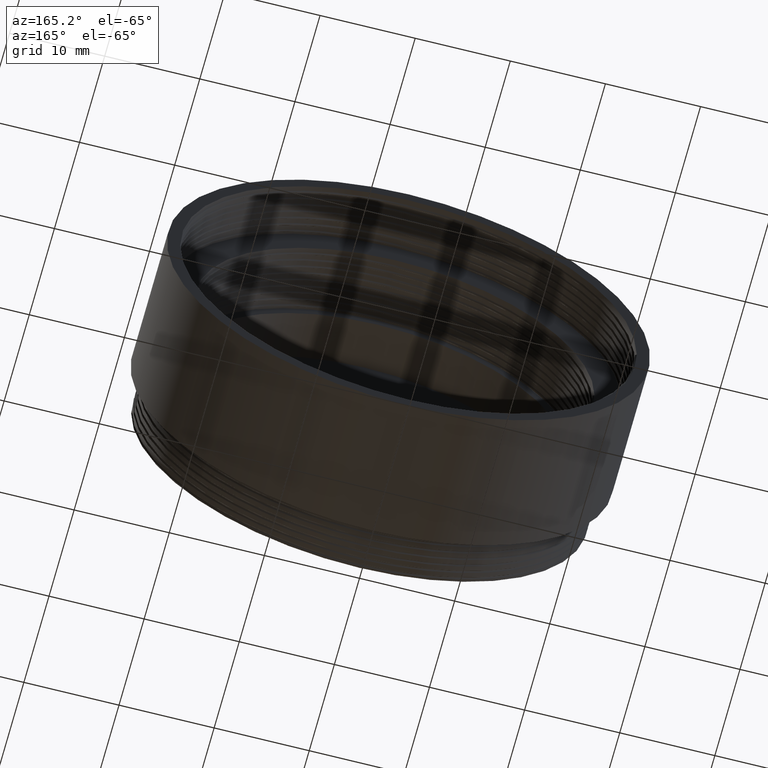
[diagram: clean part render]
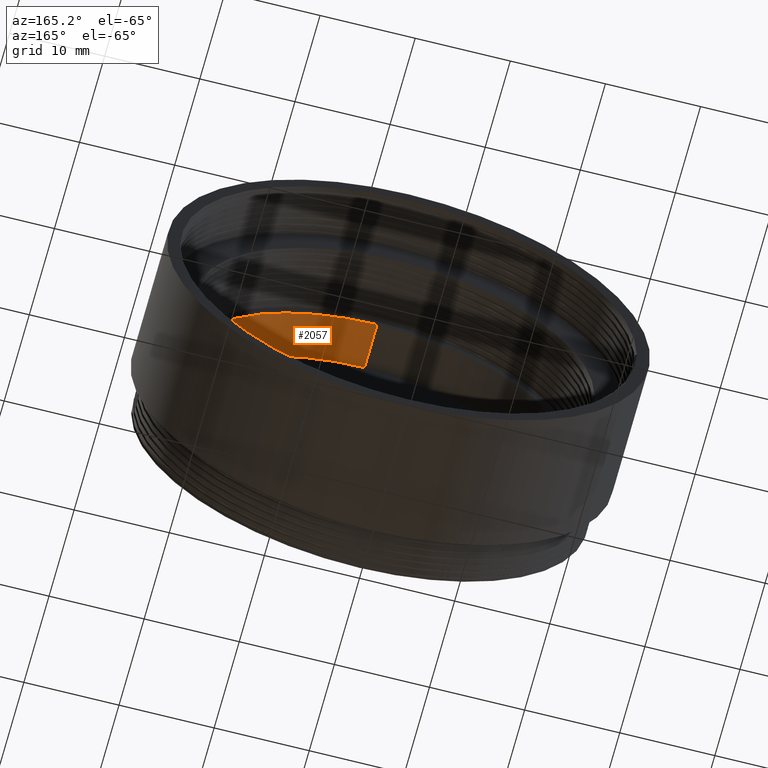
[diagram: same view with one face highlighted and labeled with its STEP entity id]
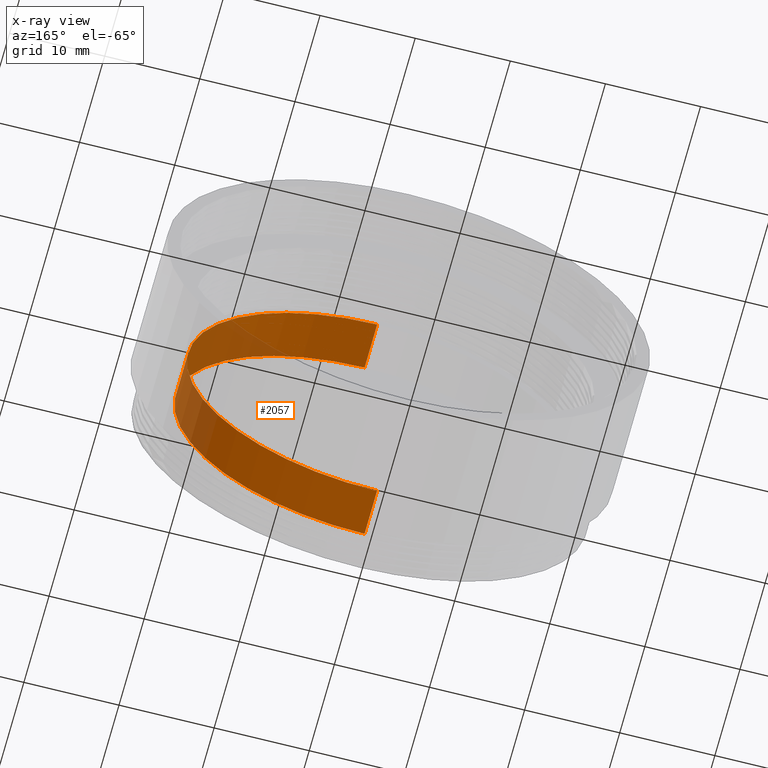
[diagram: x-ray of the same camera — body ghosted, the highlighted face saturated]
A machine part, auxiliary view. The second image highlights one B-rep face of the part: STEP entity #2057.
The next image is the same camera in x-ray: the body ghosted, the highlighted face saturated — about 25% of this face is hidden behind the body in this view.
In plain terms, the highlighted cylindrical surface (partial cylindrical patch) has radius 20 mm, axis along (-0, -1, -0).
Its self-contained STEP definition (entity closure, byte-faithful):
#125 = CARTESIAN_POINT ( 'NONE',  ( 2.449293598294706513E-15, 2.010000000000000231, 20.00000000000000000 ) ) ;
#420 = DIRECTION ( 'NONE',  ( -0.000000000000000000, -1.000000000000000000, -0.000000000000000000 ) ) ;
#595 = AXIS2_PLACEMENT_3D ( 'NONE', #5359, #420, #2360 ) ;
#623 = CARTESIAN_POINT ( 'NONE',  ( 0.000000000000000000, 2.010000000000000231, 0.000000000000000000 ) ) ;
#790 = DIRECTION ( 'NONE',  ( -0.000000000000000000, -1.000000000000000000, -0.000000000000000000 ) ) ;
#800 = ORIENTED_EDGE ( 'NONE', *, *, #968, .F. ) ;
#902 = VERTEX_POINT ( 'NONE', #1690 ) ;
#968 = EDGE_CURVE ( 'NONE', #2708, #3876, #3323, .T. ) ;
#978 = EDGE_CURVE ( 'NONE', #1275, #2708, #2742, .T. ) ;
#989 = CIRCLE ( 'NONE', #4247, 20.00000000000000000 ) ;
#1173 = DIRECTION ( 'NONE',  ( -0.000000000000000000, -1.000000000000000000, -0.000000000000000000 ) ) ;
#1275 = VERTEX_POINT ( 'NONE', #3521 ) ;
#1619 = FACE_OUTER_BOUND ( 'NONE', #6108, .T. ) ;
#1690 = CARTESIAN_POINT ( 'NONE',  ( 0.000000000000000000, 2.010000000000000231, -20.00000000000000000 ) ) ;
#1881 = ORIENTED_EDGE ( 'NONE', *, *, #2156, .T. ) ;
#2057 = ADVANCED_FACE ( 'NONE', ( #1619 ), #2698, .F. ) ;
#2156 = EDGE_CURVE ( 'NONE', #1275, #902, #6036, .T. ) ;
#2360 = DIRECTION ( 'NONE',  ( 0.000000000000000000, 0.000000000000000000, -1.000000000000000000 ) ) ;
#2698 = CYLINDRICAL_SURFACE ( 'NONE', #4668, 20.00000000000000000 ) ;
#2708 = VERTEX_POINT ( 'NONE', #3015 ) ;
#2714 = EDGE_CURVE ( 'NONE', #3876, #902, #989, .T. ) ;
#2742 = CIRCLE ( 'NONE', #595, 20.00000000000000000 ) ;
#2985 = DIRECTION ( 'NONE',  ( 0.000000000000000000, 0.000000000000000000, 1.000000000000000000 ) ) ;
#3015 = CARTESIAN_POINT ( 'NONE',  ( 2.449293598294706513E-15, 7.000000000000000000, 20.00000000000000000 ) ) ;
#3257 = CARTESIAN_POINT ( 'NONE',  ( 2.449293598294706513E-15, 0.000000000000000000, 20.00000000000000000 ) ) ;
#3323 = LINE ( 'NONE', #3257, #3351 ) ;
#3351 = VECTOR ( 'NONE', #5262, 1000.000000000000000 ) ;
#3439 = DIRECTION ( 'NONE',  ( 0.000000000000000000, 1.000000000000000000, 0.000000000000000000 ) ) ;
#3521 = CARTESIAN_POINT ( 'NONE',  ( 0.000000000000000000, 7.000000000000000000, -20.00000000000000000 ) ) ;
#3601 = CARTESIAN_POINT ( 'NONE',  ( 0.000000000000000000, 0.000000000000000000, -20.00000000000000000 ) ) ;
#3825 = ORIENTED_EDGE ( 'NONE', *, *, #978, .F. ) ;
#3876 = VERTEX_POINT ( 'NONE', #125 ) ;
#4247 = AXIS2_PLACEMENT_3D ( 'NONE', #623, #3439, #2985 ) ;
#4633 = DIRECTION ( 'NONE',  ( 0.000000000000000000, 0.000000000000000000, -1.000000000000000000 ) ) ;
#4668 = AXIS2_PLACEMENT_3D ( 'NONE', #5185, #790, #4633 ) ;
#5185 = CARTESIAN_POINT ( 'NONE',  ( 0.000000000000000000, 0.000000000000000000, 0.000000000000000000 ) ) ;
#5262 = DIRECTION ( 'NONE',  ( -0.000000000000000000, -1.000000000000000000, -0.000000000000000000 ) ) ;
#5359 = CARTESIAN_POINT ( 'NONE',  ( 0.000000000000000000, 7.000000000000000000, 0.000000000000000000 ) ) ;
#5494 = VECTOR ( 'NONE', #1173, 1000.000000000000000 ) ;
#6036 = LINE ( 'NONE', #3601, #5494 ) ;
#6108 = EDGE_LOOP ( 'NONE', ( #800, #3825, #1881, #6161 ) ) ;
#6161 = ORIENTED_EDGE ( 'NONE', *, *, #2714, .F. ) ;